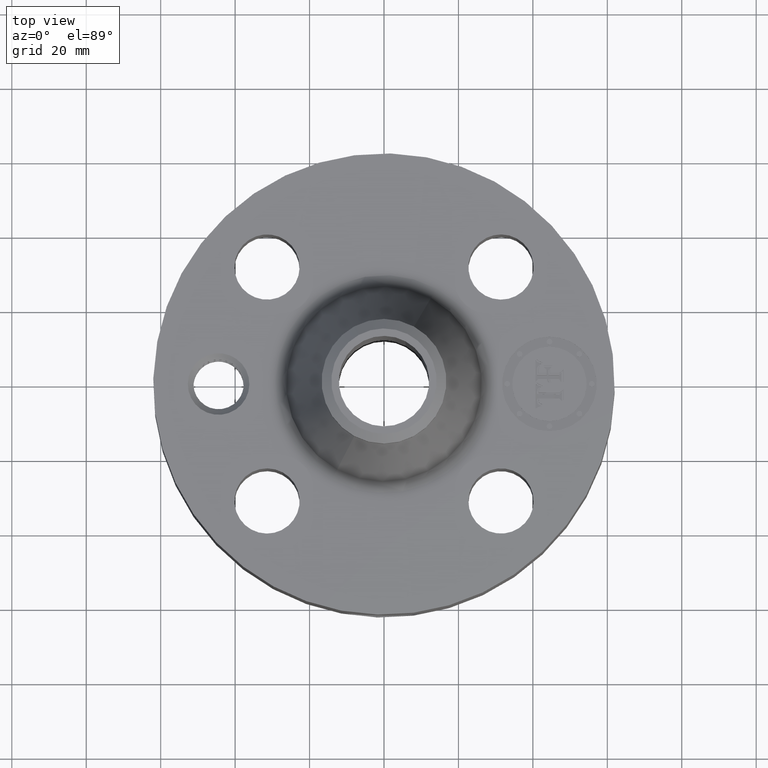
[diagram: clean part render]
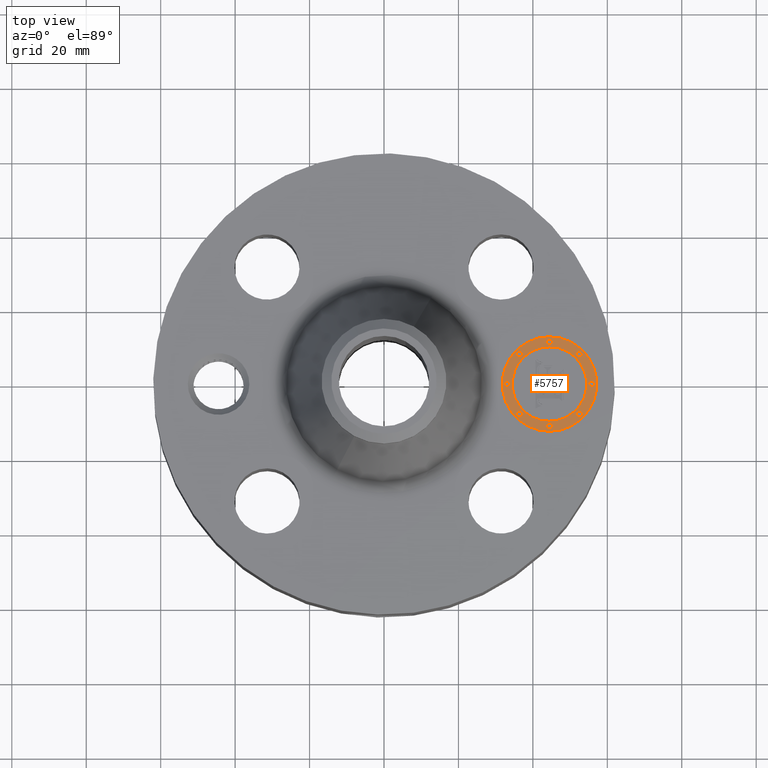
[diagram: same view with one face highlighted and labeled with its STEP entity id]
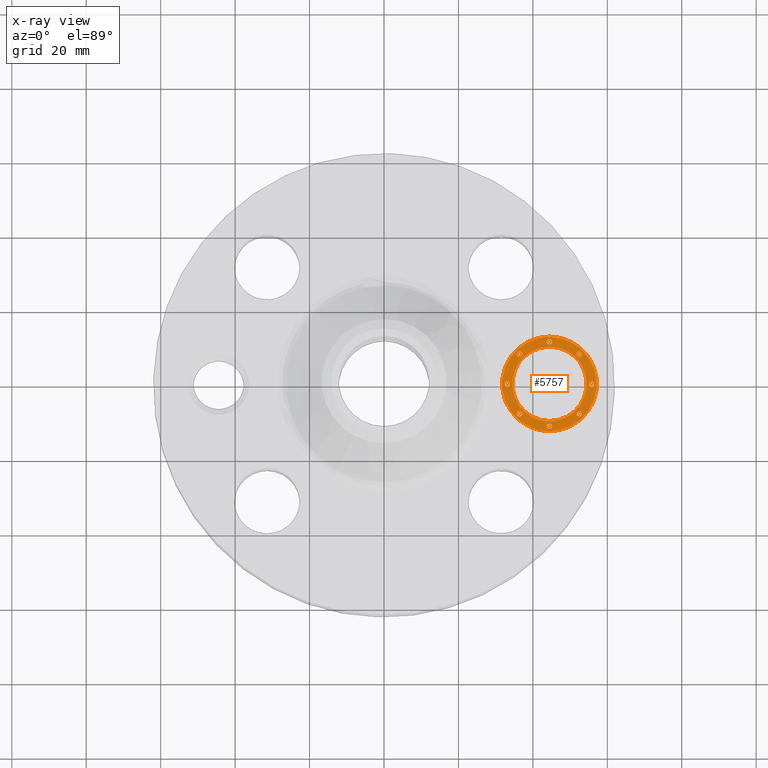
[diagram: x-ray of the same camera — body ghosted, the highlighted face saturated]
A machine part, top view. The second image highlights one B-rep face of the part: STEP entity #5757.
The next image is the same camera in x-ray: the body ghosted, the highlighted face saturated — about 0% of this face is hidden behind the body in this view.
In plain terms, the highlighted planar face has unit normal (0, 0, 1).
Its self-contained STEP definition (entity closure, byte-faithful):
#4258=AXIS2_PLACEMENT_3D('Circle Axis2P3D',#4256,#4257,$) ;
#4285=AXIS2_PLACEMENT_3D('Circle Axis2P3D',#4283,#4284,$) ;
#5589=AXIS2_PLACEMENT_3D('Plane Axis2P3D',#5586,#5587,#5588) ;
#5597=AXIS2_PLACEMENT_3D('Circle Axis2P3D',#5595,#5596,$) ;
#5606=AXIS2_PLACEMENT_3D('Circle Axis2P3D',#5604,#5605,$) ;
#5615=AXIS2_PLACEMENT_3D('Circle Axis2P3D',#5613,#5614,$) ;
#5624=AXIS2_PLACEMENT_3D('Circle Axis2P3D',#5622,#5623,$) ;
#5633=AXIS2_PLACEMENT_3D('Circle Axis2P3D',#5631,#5632,$) ;
#5642=AXIS2_PLACEMENT_3D('Circle Axis2P3D',#5640,#5641,$) ;
#5651=AXIS2_PLACEMENT_3D('Circle Axis2P3D',#5649,#5650,$) ;
#5660=AXIS2_PLACEMENT_3D('Circle Axis2P3D',#5658,#5659,$) ;
#5669=AXIS2_PLACEMENT_3D('Circle Axis2P3D',#5667,#5668,$) ;
#5678=AXIS2_PLACEMENT_3D('Circle Axis2P3D',#5676,#5677,$) ;
#5687=AXIS2_PLACEMENT_3D('Circle Axis2P3D',#5685,#5686,$) ;
#5696=AXIS2_PLACEMENT_3D('Circle Axis2P3D',#5694,#5695,$) ;
#5705=AXIS2_PLACEMENT_3D('Circle Axis2P3D',#5703,#5704,$) ;
#5714=AXIS2_PLACEMENT_3D('Circle Axis2P3D',#5712,#5713,$) ;
#5723=AXIS2_PLACEMENT_3D('Circle Axis2P3D',#5721,#5722,$) ;
#5732=AXIS2_PLACEMENT_3D('Circle Axis2P3D',#5730,#5731,$) ;
#5741=AXIS2_PLACEMENT_3D('Circle Axis2P3D',#5739,#5740,$) ;
#5750=AXIS2_PLACEMENT_3D('Circle Axis2P3D',#5748,#5749,$) ;
#4253=CARTESIAN_POINT('Vertex',(1.75000000001,-0.499999995002,1.73500000001)) ;
#4256=CARTESIAN_POINT('Axis2P3D Location',(1.75000000001,-4.38103225949E-015,1.73500000001)) ;
#4260=CARTESIAN_POINT('Vertex',(1.75000000001,0.499999995002,1.73500000001)) ;
#4283=CARTESIAN_POINT('Axis2P3D Location',(1.75000000001,-4.38103225949E-015,1.73500000001)) ;
#5586=CARTESIAN_POINT('Axis2P3D Location',(0.,0.,1.73500000001)) ;
#5595=CARTESIAN_POINT('Axis2P3D Location',(1.75000000001,-4.38103225949E-015,1.73500000001)) ;
#5599=CARTESIAN_POINT('Vertex',(1.75000000001,-0.393939390002,1.73500000001)) ;
#5601=CARTESIAN_POINT('Vertex',(1.75000000001,0.393939390002,1.73500000001)) ;
#5604=CARTESIAN_POINT('Axis2P3D Location',(1.75000000001,-4.38103225949E-015,1.73500000001)) ;
#5613=CARTESIAN_POINT('Axis2P3D Location',(1.30303030751,-5.65258331292E-015,1.73500000001)) ;
#5617=CARTESIAN_POINT('Vertex',(1.30303030751,-0.0303030300001,1.73500000001)) ;
#5619=CARTESIAN_POINT('Vertex',(1.30303030751,0.0303030300001,1.73500000001)) ;
#5622=CARTESIAN_POINT('Axis2P3D Location',(1.30303030751,-5.65258331292E-015,1.73500000001)) ;
#5631=CARTESIAN_POINT('Axis2P3D Location',(1.75000000001,0.446969692502,1.73500000001)) ;
#5635=CARTESIAN_POINT('Vertex',(1.75000000001,0.416666662502,1.73500000001)) ;
#5637=CARTESIAN_POINT('Vertex',(1.75000000001,0.477272722502,1.73500000001)) ;
#5640=CARTESIAN_POINT('Axis2P3D Location',(1.75000000001,0.446969692502,1.73500000001)) ;
#5649=CARTESIAN_POINT('Axis2P3D Location',(1.43394469945,0.316055300553,1.73500000001)) ;
#5653=CARTESIAN_POINT('Vertex',(1.43394469945,0.285752270553,1.73500000001)) ;
#5655=CARTESIAN_POINT('Vertex',(1.43394469945,0.346358330553,1.73500000001)) ;
#5658=CARTESIAN_POINT('Axis2P3D Location',(1.43394469945,0.316055300553,1.73500000001)) ;
#5667=CARTESIAN_POINT('Axis2P3D Location',(2.19696969251,7.34549412211E-015,1.73500000001)) ;
#5671=CARTESIAN_POINT('Vertex',(2.19696969251,-0.0303030300001,1.73500000001)) ;
#5673=CARTESIAN_POINT('Vertex',(2.19696969251,0.0303030300001,1.73500000001)) ;
#5676=CARTESIAN_POINT('Axis2P3D Location',(2.19696969251,7.34549412211E-015,1.73500000001)) ;
#5685=CARTESIAN_POINT('Axis2P3D Location',(2.06605530056,0.316055300553,1.73500000001)) ;
#5689=CARTESIAN_POINT('Vertex',(2.06605530056,0.285752270553,1.73500000001)) ;
#5691=CARTESIAN_POINT('Vertex',(2.06605530056,0.346358330553,1.73500000001)) ;
#5694=CARTESIAN_POINT('Axis2P3D Location',(2.06605530056,0.316055300553,1.73500000001)) ;
#5703=CARTESIAN_POINT('Axis2P3D Location',(1.75000000001,-0.446969692502,1.73500000001)) ;
#5707=CARTESIAN_POINT('Vertex',(1.75000000001,-0.416666662502,1.73500000001)) ;
#5709=CARTESIAN_POINT('Vertex',(1.75000000001,-0.477272722502,1.73500000001)) ;
#5712=CARTESIAN_POINT('Axis2P3D Location',(1.75000000001,-0.446969692502,1.73500000001)) ;
#5721=CARTESIAN_POINT('Axis2P3D Location',(1.43394469945,-0.316055300553,1.73500000001)) ;
#5725=CARTESIAN_POINT('Vertex',(1.43394469945,-0.285752270553,1.73500000001)) ;
#5727=CARTESIAN_POINT('Vertex',(1.43394469945,-0.346358330553,1.73500000001)) ;
#5730=CARTESIAN_POINT('Axis2P3D Location',(1.43394469945,-0.316055300553,1.73500000001)) ;
#5739=CARTESIAN_POINT('Axis2P3D Location',(2.06605530056,-0.316055300553,1.73500000001)) ;
#5743=CARTESIAN_POINT('Vertex',(2.06605530056,-0.285752270553,1.73500000001)) ;
#5745=CARTESIAN_POINT('Vertex',(2.06605530056,-0.346358330553,1.73500000001)) ;
#5748=CARTESIAN_POINT('Axis2P3D Location',(2.06605530056,-0.316055300553,1.73500000001)) ;
#4257=DIRECTION('Axis2P3D Direction',(0.,0.,0.0393700787402)) ;
#4284=DIRECTION('Axis2P3D Direction',(0.,0.,0.0393700787402)) ;
#5587=DIRECTION('Axis2P3D Direction',(0.,0.,0.0393700787402)) ;
#5588=DIRECTION('Axis2P3D XDirection',(0.0393700787402,0.,0.)) ;
#5596=DIRECTION('Axis2P3D Direction',(0.,0.,0.0393700787402)) ;
#5605=DIRECTION('Axis2P3D Direction',(0.,0.,0.0393700787402)) ;
#5614=DIRECTION('Axis2P3D Direction',(0.,0.,0.0393700787402)) ;
#5623=DIRECTION('Axis2P3D Direction',(0.,0.,0.0393700787402)) ;
#5632=DIRECTION('Axis2P3D Direction',(0.,0.,0.0393700787402)) ;
#5641=DIRECTION('Axis2P3D Direction',(0.,0.,0.0393700787402)) ;
#5650=DIRECTION('Axis2P3D Direction',(0.,0.,0.0393700787402)) ;
#5659=DIRECTION('Axis2P3D Direction',(0.,0.,0.0393700787402)) ;
#5668=DIRECTION('Axis2P3D Direction',(0.,0.,0.0393700787402)) ;
#5677=DIRECTION('Axis2P3D Direction',(0.,0.,0.0393700787402)) ;
#5686=DIRECTION('Axis2P3D Direction',(0.,0.,0.0393700787402)) ;
#5695=DIRECTION('Axis2P3D Direction',(0.,0.,0.0393700787402)) ;
#5704=DIRECTION('Axis2P3D Direction',(0.,0.,0.0393700787402)) ;
#5713=DIRECTION('Axis2P3D Direction',(0.,0.,0.0393700787402)) ;
#5722=DIRECTION('Axis2P3D Direction',(0.,0.,0.0393700787402)) ;
#5731=DIRECTION('Axis2P3D Direction',(0.,0.,0.0393700787402)) ;
#5740=DIRECTION('Axis2P3D Direction',(0.,0.,0.0393700787402)) ;
#5749=DIRECTION('Axis2P3D Direction',(0.,0.,0.0393700787402)) ;
#5592=ORIENTED_EDGE('',*,*,#4262,.T.) ;
#5593=ORIENTED_EDGE('',*,*,#4287,.T.) ;
#5610=ORIENTED_EDGE('',*,*,#5603,.F.) ;
#5611=ORIENTED_EDGE('',*,*,#5608,.F.) ;
#5628=ORIENTED_EDGE('',*,*,#5621,.F.) ;
#5629=ORIENTED_EDGE('',*,*,#5626,.F.) ;
#5646=ORIENTED_EDGE('',*,*,#5639,.F.) ;
#5647=ORIENTED_EDGE('',*,*,#5644,.F.) ;
#5664=ORIENTED_EDGE('',*,*,#5657,.F.) ;
#5665=ORIENTED_EDGE('',*,*,#5662,.F.) ;
#5682=ORIENTED_EDGE('',*,*,#5675,.F.) ;
#5683=ORIENTED_EDGE('',*,*,#5680,.F.) ;
#5700=ORIENTED_EDGE('',*,*,#5693,.F.) ;
#5701=ORIENTED_EDGE('',*,*,#5698,.F.) ;
#5718=ORIENTED_EDGE('',*,*,#5711,.F.) ;
#5719=ORIENTED_EDGE('',*,*,#5716,.F.) ;
#5736=ORIENTED_EDGE('',*,*,#5729,.F.) ;
#5737=ORIENTED_EDGE('',*,*,#5734,.F.) ;
#5754=ORIENTED_EDGE('',*,*,#5747,.F.) ;
#5755=ORIENTED_EDGE('',*,*,#5752,.F.) ;
#5612=FACE_BOUND('',#5609,.T.) ;
#5630=FACE_BOUND('',#5627,.T.) ;
#5648=FACE_BOUND('',#5645,.T.) ;
#5666=FACE_BOUND('',#5663,.T.) ;
#5684=FACE_BOUND('',#5681,.T.) ;
#5702=FACE_BOUND('',#5699,.T.) ;
#5720=FACE_BOUND('',#5717,.T.) ;
#5738=FACE_BOUND('',#5735,.T.) ;
#5756=FACE_BOUND('',#5753,.T.) ;
#5757=ADVANCED_FACE('PartBody',(#5594,#5612,#5630,#5648,#5666,#5684,#5702,#5720,#5738,#5756),#5590,.T.) ;
#4259=CIRCLE('generated circle',#4258,0.499999995002) ;
#4286=CIRCLE('generated circle',#4285,0.499999995002) ;
#5598=CIRCLE('generated circle',#5597,0.393939390002) ;
#5607=CIRCLE('generated circle',#5606,0.393939390002) ;
#5616=CIRCLE('generated circle',#5615,0.0303030300001) ;
#5625=CIRCLE('generated circle',#5624,0.0303030300001) ;
#5634=CIRCLE('generated circle',#5633,0.0303030300001) ;
#5643=CIRCLE('generated circle',#5642,0.0303030300001) ;
#5652=CIRCLE('generated circle',#5651,0.0303030300001) ;
#5661=CIRCLE('generated circle',#5660,0.0303030300001) ;
#5670=CIRCLE('generated circle',#5669,0.0303030300001) ;
#5679=CIRCLE('generated circle',#5678,0.0303030300001) ;
#5688=CIRCLE('generated circle',#5687,0.0303030300001) ;
#5697=CIRCLE('generated circle',#5696,0.0303030300001) ;
#5706=CIRCLE('generated circle',#5705,0.0303030300001) ;
#5715=CIRCLE('generated circle',#5714,0.0303030300001) ;
#5724=CIRCLE('generated circle',#5723,0.0303030300001) ;
#5733=CIRCLE('generated circle',#5732,0.0303030300001) ;
#5742=CIRCLE('generated circle',#5741,0.0303030300001) ;
#5751=CIRCLE('generated circle',#5750,0.0303030300001) ;
#4262=EDGE_CURVE('',#4261,#4254,#4259,.T.) ;
#4287=EDGE_CURVE('',#4254,#4261,#4286,.T.) ;
#5603=EDGE_CURVE('',#5600,#5602,#5598,.T.) ;
#5608=EDGE_CURVE('',#5602,#5600,#5607,.T.) ;
#5621=EDGE_CURVE('',#5618,#5620,#5616,.T.) ;
#5626=EDGE_CURVE('',#5620,#5618,#5625,.T.) ;
#5639=EDGE_CURVE('',#5636,#5638,#5634,.T.) ;
#5644=EDGE_CURVE('',#5638,#5636,#5643,.T.) ;
#5657=EDGE_CURVE('',#5654,#5656,#5652,.T.) ;
#5662=EDGE_CURVE('',#5656,#5654,#5661,.T.) ;
#5675=EDGE_CURVE('',#5672,#5674,#5670,.T.) ;
#5680=EDGE_CURVE('',#5674,#5672,#5679,.T.) ;
#5693=EDGE_CURVE('',#5690,#5692,#5688,.T.) ;
#5698=EDGE_CURVE('',#5692,#5690,#5697,.T.) ;
#5711=EDGE_CURVE('',#5708,#5710,#5706,.T.) ;
#5716=EDGE_CURVE('',#5710,#5708,#5715,.T.) ;
#5729=EDGE_CURVE('',#5726,#5728,#5724,.T.) ;
#5734=EDGE_CURVE('',#5728,#5726,#5733,.T.) ;
#5747=EDGE_CURVE('',#5744,#5746,#5742,.T.) ;
#5752=EDGE_CURVE('',#5746,#5744,#5751,.T.) ;
#5591=EDGE_LOOP('',(#5592,#5593)) ;
#5609=EDGE_LOOP('',(#5610,#5611)) ;
#5627=EDGE_LOOP('',(#5628,#5629)) ;
#5645=EDGE_LOOP('',(#5646,#5647)) ;
#5663=EDGE_LOOP('',(#5664,#5665)) ;
#5681=EDGE_LOOP('',(#5682,#5683)) ;
#5699=EDGE_LOOP('',(#5700,#5701)) ;
#5717=EDGE_LOOP('',(#5718,#5719)) ;
#5735=EDGE_LOOP('',(#5736,#5737)) ;
#5753=EDGE_LOOP('',(#5754,#5755)) ;
#5594=FACE_OUTER_BOUND('',#5591,.T.) ;
#5590=PLANE('',#5589) ;
#4254=VERTEX_POINT('',#4253) ;
#4261=VERTEX_POINT('',#4260) ;
#5600=VERTEX_POINT('',#5599) ;
#5602=VERTEX_POINT('',#5601) ;
#5618=VERTEX_POINT('',#5617) ;
#5620=VERTEX_POINT('',#5619) ;
#5636=VERTEX_POINT('',#5635) ;
#5638=VERTEX_POINT('',#5637) ;
#5654=VERTEX_POINT('',#5653) ;
#5656=VERTEX_POINT('',#5655) ;
#5672=VERTEX_POINT('',#5671) ;
#5674=VERTEX_POINT('',#5673) ;
#5690=VERTEX_POINT('',#5689) ;
#5692=VERTEX_POINT('',#5691) ;
#5708=VERTEX_POINT('',#5707) ;
#5710=VERTEX_POINT('',#5709) ;
#5726=VERTEX_POINT('',#5725) ;
#5728=VERTEX_POINT('',#5727) ;
#5744=VERTEX_POINT('',#5743) ;
#5746=VERTEX_POINT('',#5745) ;